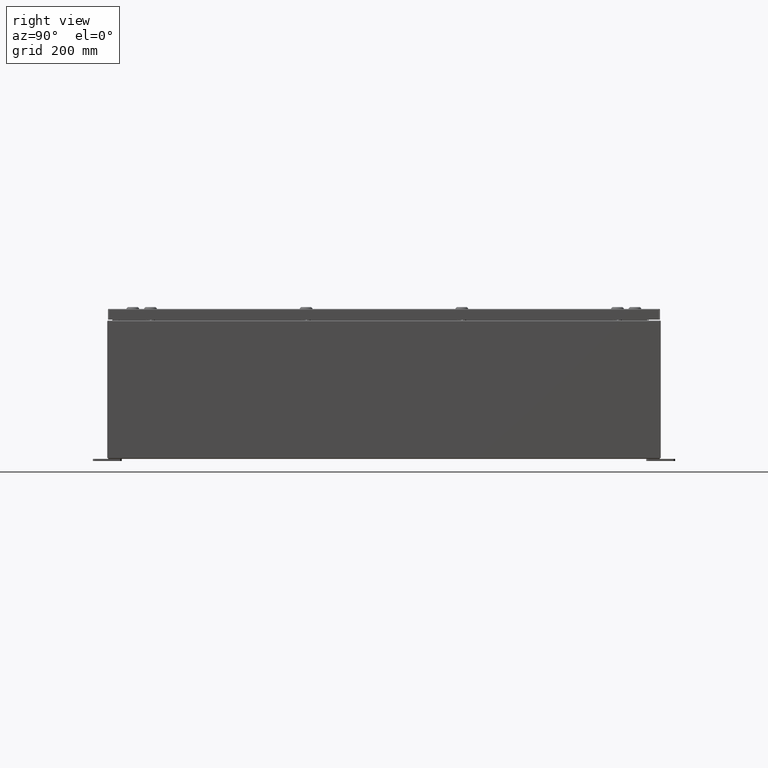
[diagram: clean part render]
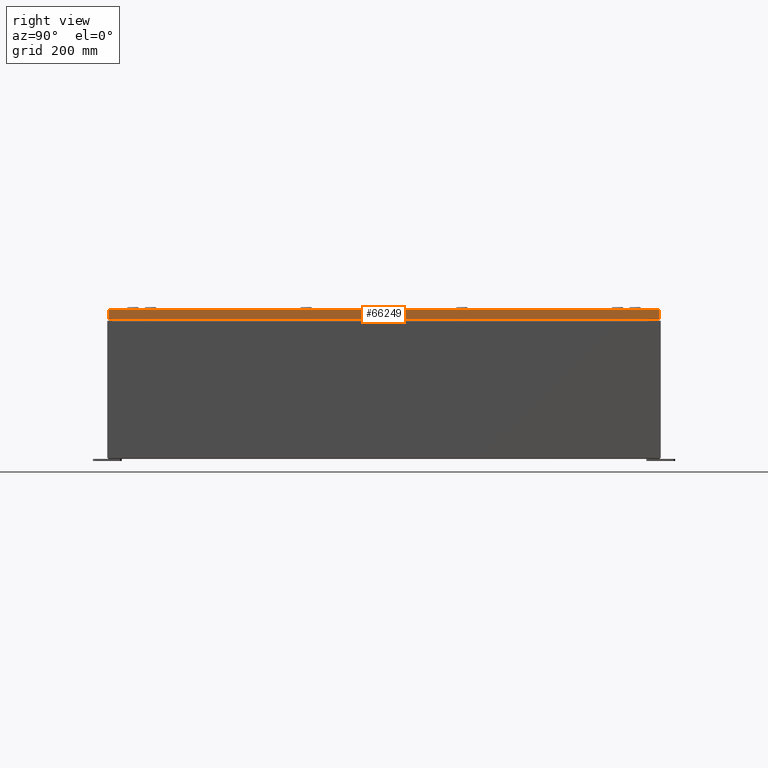
[diagram: same view with one face highlighted and labeled with its STEP entity id]
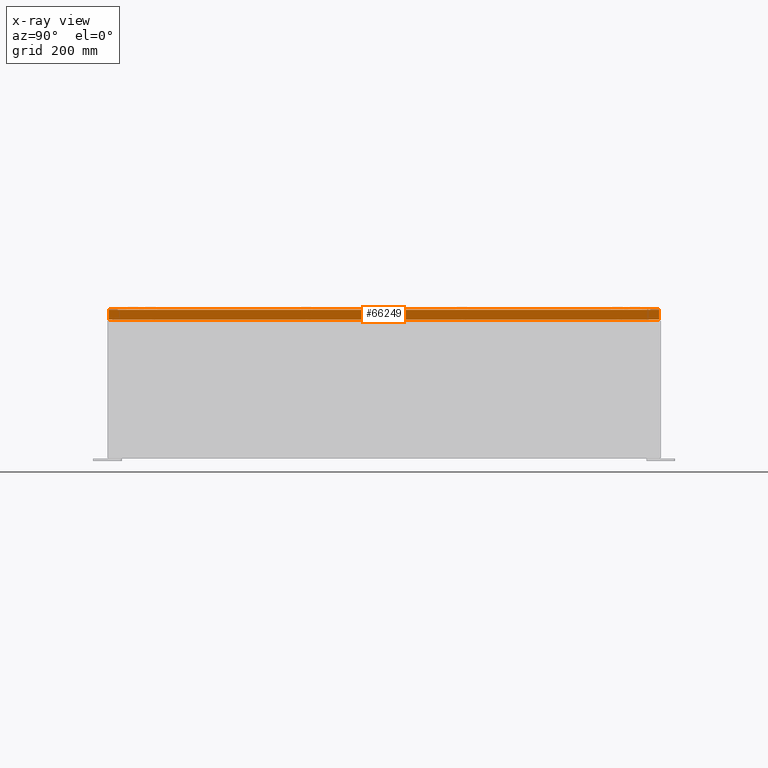
[diagram: x-ray of the same camera — body ghosted, the highlighted face saturated]
A machine part, right view. The second image highlights one B-rep face of the part: STEP entity #66249.
The next image is the same camera in x-ray: the body ghosted, the highlighted face saturated — about 0% of this face is hidden behind the body in this view.
In plain terms, the highlighted planar face has unit normal (1, 0, 0).
Its self-contained STEP definition (entity closure, byte-faithful):
#4901 = DIRECTION ( 'NONE',  ( 0.0000000000000000000, -1.000000000000000000, 0.0000000000000000000 ) ) ;
#5000 = EDGE_LOOP ( 'NONE', ( #5638, #66434, #67826, #28677 ) ) ;
#5638 = ORIENTED_EDGE ( 'NONE', *, *, #35267, .F. ) ;
#6241 = CARTESIAN_POINT ( 'NONE',  ( 17.93750000000000400, 0.0000000000000000000, -0.08770000000000008300 ) ) ;
#15482 = LINE ( 'NONE', #61856, #57827 ) ;
#23233 = VECTOR ( 'NONE', #48724, 39.37007874015748100 ) ;
#23398 = EDGE_CURVE ( 'NONE', #34246, #44246, #45581, .T. ) ;
#28677 = ORIENTED_EDGE ( 'NONE', *, *, #40451, .T. ) ;
#30091 = CARTESIAN_POINT ( 'NONE',  ( 17.93750000000000700, -23.84865786437626100, -0.9376999999999997600 ) ) ;
#31130 = CARTESIAN_POINT ( 'NONE',  ( 17.93750000000000400, -23.84865786437626800, -0.08770000000000008300 ) ) ;
#34246 = VERTEX_POINT ( 'NONE', #48261 ) ;
#35267 = EDGE_CURVE ( 'NONE', #44246, #52253, #37322, .T. ) ;
#35622 = DIRECTION ( 'NONE',  ( 2.532419924601866100E-015, 0.0000000000000000000, -1.000000000000000000 ) ) ;
#37322 = LINE ( 'NONE', #59147, #23233 ) ;
#40451 = EDGE_CURVE ( 'NONE', #47827, #52253, #43329, .T. ) ;
#43329 = LINE ( 'NONE', #6241, #55839 ) ;
#44246 = VERTEX_POINT ( 'NONE', #30091 ) ;
#45581 = LINE ( 'NONE', #57874, #58045 ) ;
#47091 = FACE_OUTER_BOUND ( 'NONE', #5000, .T. ) ;
#47827 = VERTEX_POINT ( 'NONE', #53923 ) ;
#48261 = CARTESIAN_POINT ( 'NONE',  ( 17.93750000000000700, 23.84865786437627800, -0.9376999999999997600 ) ) ;
#48724 = DIRECTION ( 'NONE',  ( -2.532419924601866100E-015, -6.982962677686265900E-015, 1.000000000000000000 ) ) ;
#49430 = AXIS2_PLACEMENT_3D ( 'NONE', #56799, #67461, #35622 ) ;
#51417 = PLANE ( 'NONE',  #49430 ) ;
#52253 = VERTEX_POINT ( 'NONE', #31130 ) ;
#53923 = CARTESIAN_POINT ( 'NONE',  ( 17.93750000000000400, 23.84865786437627100, -0.08770000000000008300 ) ) ;
#55839 = VECTOR ( 'NONE', #64530, 39.37007874015748100 ) ;
#56799 = CARTESIAN_POINT ( 'NONE',  ( 17.93750000000000400, 0.0000000000000000000, 4.568609605355756000E-014 ) ) ;
#57827 = VECTOR ( 'NONE', #67197, 39.37007874015748100 ) ;
#57874 = CARTESIAN_POINT ( 'NONE',  ( 17.93750000000000700, -23.93750000000000000, -0.9376999999999997600 ) ) ;
#58045 = VECTOR ( 'NONE', #4901, 39.37007874015748100 ) ;
#59147 = CARTESIAN_POINT ( 'NONE',  ( 17.93750000000000400, -23.84865786437626800, -0.07469999999999980800 ) ) ;
#61856 = CARTESIAN_POINT ( 'NONE',  ( 17.93750000000000400, 23.84865786437627500, 2.122203838334061400E-013 ) ) ;
#64530 = DIRECTION ( 'NONE',  ( 0.0000000000000000000, -1.000000000000000000, 0.0000000000000000000 ) ) ;
#66249 = ADVANCED_FACE ( 'NONE', ( #47091 ), #51417, .T. ) ;
#66434 = ORIENTED_EDGE ( 'NONE', *, *, #23398, .F. ) ;
#67197 = DIRECTION ( 'NONE',  ( -2.532419924601866100E-015, -6.982962677686265900E-015, 1.000000000000000000 ) ) ;
#67461 = DIRECTION ( 'NONE',  ( 1.000000000000000000, 0.0000000000000000000, 2.532419924601866100E-015 ) ) ;
#67618 = EDGE_CURVE ( 'NONE', #34246, #47827, #15482, .T. ) ;
#67826 = ORIENTED_EDGE ( 'NONE', *, *, #67618, .T. ) ;